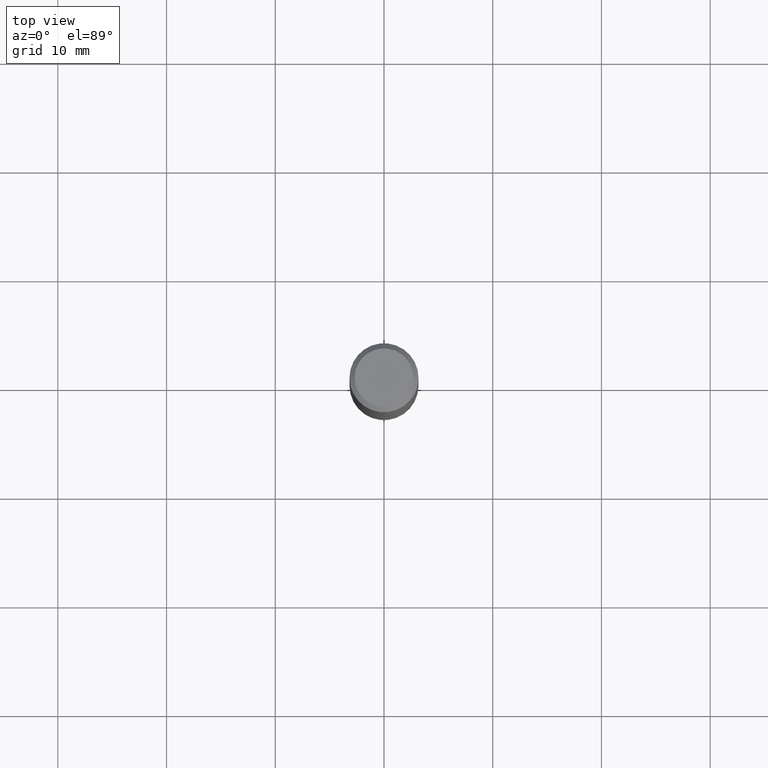
[diagram: clean part render]
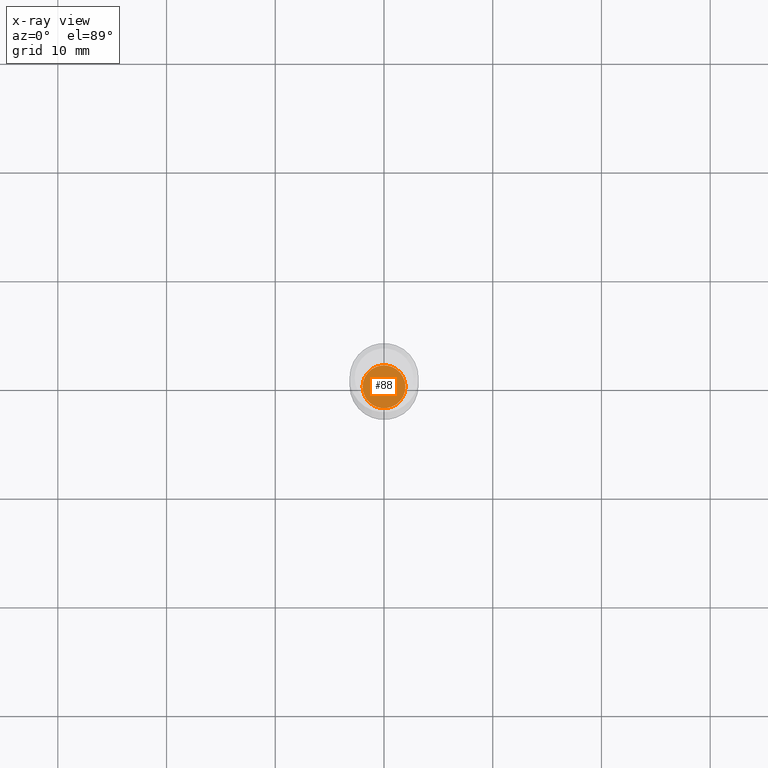
[diagram: x-ray — body ghosted, one internal face saturated and labeled with its STEP entity id]
A machine part, top view, then the same camera in x-ray: the body is ghosted and one INTERNAL B-rep face — a face not visible from any outside direction — is saturated and labeled: STEP entity #88.
In plain terms, the highlighted planar face has unit normal (-0, 0, 1).
Its self-contained STEP definition (entity closure, byte-faithful):
#39 = VERTEX_POINT ( 'NONE', #267 ) ;
#88 = ADVANCED_FACE ( 'NONE', ( #410 ), #184, .F. ) ;
#116 = CARTESIAN_POINT ( 'NONE',  ( 4.661552638350107806E-29, -6.655461728102803685E-15, -1.906200000000000117 ) ) ;
#146 = CARTESIAN_POINT ( 'NONE',  ( 0.07760000000000000231, -7.197339631891257326E-15, -1.906200000000000117 ) ) ;
#151 = EDGE_CURVE ( 'NONE', #337, #39, #255, .T. ) ;
#184 = PLANE ( 'NONE',  #310 ) ;
#189 = EDGE_CURVE ( 'NONE', #39, #337, #244, .T. ) ;
#210 = EDGE_LOOP ( 'NONE', ( #318, #279 ) ) ;
#244 = CIRCLE ( 'NONE', #300, 0.07760000000000000231 ) ;
#255 = CIRCLE ( 'NONE', #480, 0.07760000000000000231 ) ;
#259 = DIRECTION ( 'NONE',  ( 1.000000000000000000, -6.982962677686260400E-15, 0.000000000000000000 ) ) ;
#267 = CARTESIAN_POINT ( 'NONE',  ( -0.07760000000000000231, -6.101431337978854723E-15, -1.906200000000000117 ) ) ;
#275 = DIRECTION ( 'NONE',  ( 1.000000000000000000, -6.982962677686265922E-15, 4.876176775795935793E-29 ) ) ;
#278 = DIRECTION ( 'NONE',  ( -2.438088387897960049E-29, 3.491481338843145188E-15, 1.000000000000000000 ) ) ;
#279 = ORIENTED_EDGE ( 'NONE', *, *, #189, .F. ) ;
#295 = CARTESIAN_POINT ( 'NONE',  ( 4.661552638350107806E-29, -6.655461728102803685E-15, -1.906200000000000117 ) ) ;
#300 = AXIS2_PLACEMENT_3D ( 'NONE', #295, #471, #259 ) ;
#303 = DIRECTION ( 'NONE',  ( -2.445468806185136597E-29, 3.491481338843145583E-15, 1.000000000000000000 ) ) ;
#310 = AXIS2_PLACEMENT_3D ( 'NONE', #116, #278, #275 ) ;
#318 = ORIENTED_EDGE ( 'NONE', *, *, #151, .F. ) ;
#328 = CARTESIAN_POINT ( 'NONE',  ( 4.661552638350107806E-29, -6.655461728102803685E-15, -1.906200000000000117 ) ) ;
#337 = VERTEX_POINT ( 'NONE', #146 ) ;
#357 = DIRECTION ( 'NONE',  ( 1.000000000000000000, -6.982962677686260400E-15, 0.000000000000000000 ) ) ;
#410 = FACE_OUTER_BOUND ( 'NONE', #210, .T. ) ;
#471 = DIRECTION ( 'NONE',  ( -2.445468806185136597E-29, 3.491481338843145583E-15, 1.000000000000000000 ) ) ;
#480 = AXIS2_PLACEMENT_3D ( 'NONE', #328, #303, #357 ) ;